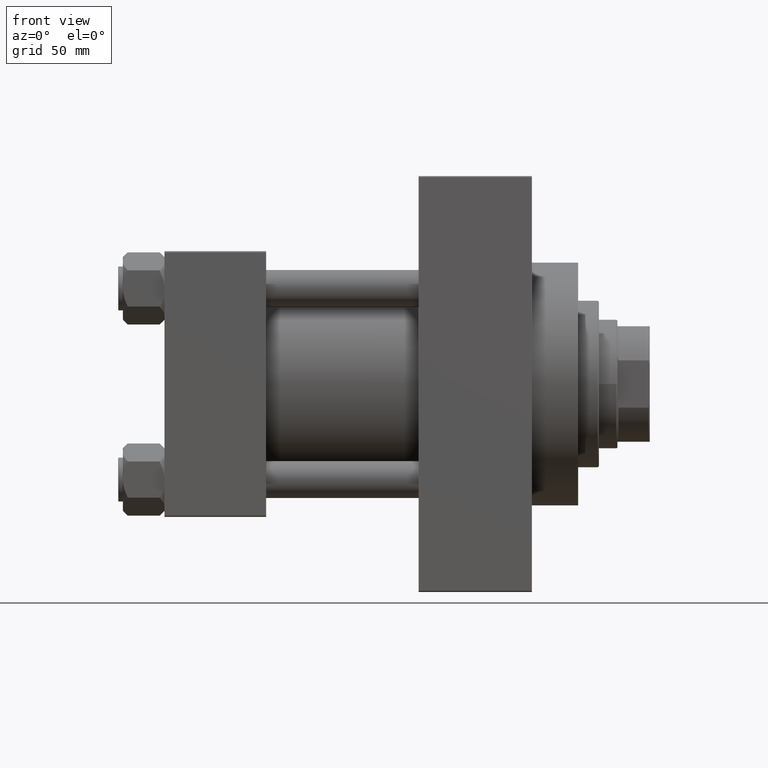
[diagram: clean part render]
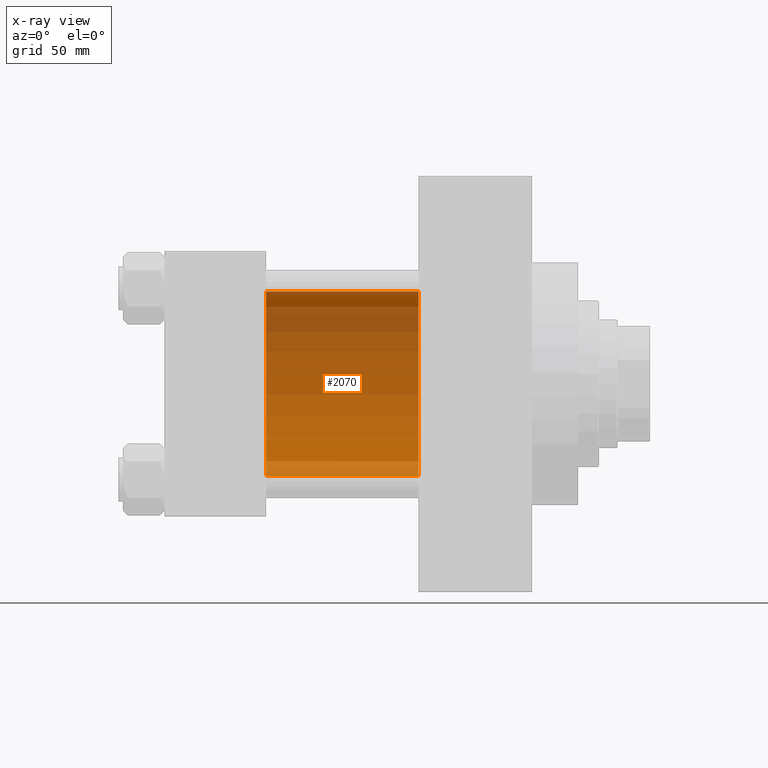
[diagram: x-ray — body ghosted, one internal face saturated and labeled with its STEP entity id]
A machine part, front view, then the same camera in x-ray: the body is ghosted and one INTERNAL B-rep face — a face not visible from any outside direction — is saturated and labeled: STEP entity #2070.
In plain terms, the highlighted cylindrical surface (partial cylindrical patch) has radius 40 mm, axis along (-1, -0, -0).
Its self-contained STEP definition (entity closure, byte-faithful):
#2070 = ADVANCED_FACE ( 'NONE', ( #22653 ), #23383, .F. ) ;
#2400 = VERTEX_POINT ( 'NONE', #8284 ) ;
#3624 = DIRECTION ( 'NONE',  ( 0.000000000000000000, 0.000000000000000000, 1.000000000000000000 ) ) ;
#4954 = CARTESIAN_POINT ( 'NONE',  ( 44.00000000000000000, -2.602085213965210642E-15, 0.000000000000000000 ) ) ;
#5466 = EDGE_LOOP ( 'NONE', ( #40706, #19193, #44646, #11465 ) ) ;
#5488 = CARTESIAN_POINT ( 'NONE',  ( 110.0000000000000000, 2.296501982624201990E-15, -40.00000000000000000 ) ) ;
#8284 = CARTESIAN_POINT ( 'NONE',  ( 44.00000000000000000, 2.296501982624201990E-15, -40.00000000000000000 ) ) ;
#8464 = DIRECTION ( 'NONE',  ( 0.000000000000000000, 0.000000000000000000, -1.000000000000000000 ) ) ;
#10041 = VERTEX_POINT ( 'NONE', #28727 ) ;
#11465 = ORIENTED_EDGE ( 'NONE', *, *, #44197, .F. ) ;
#12892 = LINE ( 'NONE', #16656, #47820 ) ;
#16422 = CARTESIAN_POINT ( 'NONE',  ( 110.0000000000000000, -2.602085213965210642E-15, 40.00000000000000000 ) ) ;
#16656 = CARTESIAN_POINT ( 'NONE',  ( 110.0000000000000000, 2.296501982624201990E-15, -40.00000000000000000 ) ) ;
#18010 = CIRCLE ( 'NONE', #45946, 40.00000000000000000 ) ;
#19193 = ORIENTED_EDGE ( 'NONE', *, *, #44073, .T. ) ;
#19483 = DIRECTION ( 'NONE',  ( 1.000000000000000000, 0.000000000000000000, 0.000000000000000000 ) ) ;
#19761 = DIRECTION ( 'NONE',  ( -1.000000000000000000, -0.000000000000000000, -0.000000000000000000 ) ) ;
#20193 = VERTEX_POINT ( 'NONE', #16422 ) ;
#20383 = AXIS2_PLACEMENT_3D ( 'NONE', #4954, #42731, #8464 ) ;
#22414 = CARTESIAN_POINT ( 'NONE',  ( 110.0000000000000000, -2.602085213965210642E-15, 0.000000000000000000 ) ) ;
#22653 = FACE_OUTER_BOUND ( 'NONE', #5466, .T. ) ;
#22824 = EDGE_CURVE ( 'NONE', #20193, #10041, #46045, .T. ) ;
#22889 = VERTEX_POINT ( 'NONE', #5488 ) ;
#23015 = CARTESIAN_POINT ( 'NONE',  ( 110.0000000000000000, -2.602085213965210642E-15, 0.000000000000000000 ) ) ;
#23383 = CYLINDRICAL_SURFACE ( 'NONE', #43374, 40.00000000000000000 ) ;
#28727 = CARTESIAN_POINT ( 'NONE',  ( 44.00000000000000000, -2.602085213965210642E-15, 40.00000000000000000 ) ) ;
#38255 = DIRECTION ( 'NONE',  ( 0.000000000000000000, 0.000000000000000000, -1.000000000000000000 ) ) ;
#38621 = DIRECTION ( 'NONE',  ( -1.000000000000000000, -0.000000000000000000, -0.000000000000000000 ) ) ;
#39377 = EDGE_CURVE ( 'NONE', #22889, #2400, #12892, .T. ) ;
#40706 = ORIENTED_EDGE ( 'NONE', *, *, #39377, .F. ) ;
#42461 = VECTOR ( 'NONE', #19761, 1000.000000000000000 ) ;
#42731 = DIRECTION ( 'NONE',  ( 1.000000000000000000, 0.000000000000000000, 0.000000000000000000 ) ) ;
#42760 = CARTESIAN_POINT ( 'NONE',  ( 110.0000000000000000, -2.602085213965210642E-15, 40.00000000000000000 ) ) ;
#43374 = AXIS2_PLACEMENT_3D ( 'NONE', #22414, #38621, #3624 ) ;
#43666 = DIRECTION ( 'NONE',  ( -1.000000000000000000, -0.000000000000000000, -0.000000000000000000 ) ) ;
#43668 = CIRCLE ( 'NONE', #20383, 40.00000000000000000 ) ;
#44073 = EDGE_CURVE ( 'NONE', #22889, #20193, #18010, .T. ) ;
#44197 = EDGE_CURVE ( 'NONE', #2400, #10041, #43668, .T. ) ;
#44646 = ORIENTED_EDGE ( 'NONE', *, *, #22824, .T. ) ;
#45946 = AXIS2_PLACEMENT_3D ( 'NONE', #23015, #19483, #38255 ) ;
#46045 = LINE ( 'NONE', #42760, #42461 ) ;
#47820 = VECTOR ( 'NONE', #43666, 1000.000000000000000 ) ;